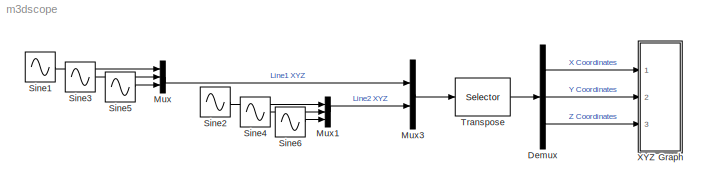
MODEL m3dscope
KIND model
CONFIG AbsTol = auto
CONFIG FixedStep = 1
CONFIG MaxStep = auto
CONFIG RelTol = 1e-3
CONFIG Solver = ode45
CONFIG SolverMode = Auto
CONFIG StartTime = 0.0
CONFIG StopTime = 10
BLOCK [Demux] Demux
  Outputs = [2 2 2]
  Ports = [1, 3, 0, 0, 0]
BLOCK [Mux] Mux
  DisplayOption = bar
  Inputs = 3
  Ports = [3, 1, 0, 0, 0]
BLOCK [Mux] Mux1
  DisplayOption = bar
  Inputs = 3
  Ports = [3, 1, 0, 0, 0]
BLOCK [Mux] Mux3
  DisplayOption = bar
  Inputs = 2
  Ports = [2, 1, 0, 0, 0]
BLOCK [Sin] Sine1
  Amplitude = 1
  Frequency = 1
  Phase = 0
  SampleTime = 0
BLOCK [Sin] Sine2
  Amplitude = 2
  Frequency = 2
  Phase = 0
  SampleTime = 0
BLOCK [Sin] Sine3
  Amplitude = 1
  Frequency = 1
  Phase = pi/2
  SampleTime = 0
BLOCK [Sin] Sine4
  Amplitude = 2
  Frequency = 2
  Phase = pi/2
  SampleTime = 0
BLOCK [Sin] Sine5
  Amplitude = 1.5
  Frequency = 1.2
  Phase = pi/2
  SampleTime = 0
BLOCK [Sin] Sine6
  Amplitude = 2.5
  Frequency = 2.2
  Phase = pi/2
  SampleTime = 0
BLOCK [Selector] Transpose
  Elements = reshape(reshape(1:3*2,3,2)',3*2,1)
  InputPortWidth = 3*2
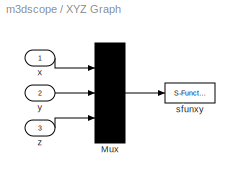
BLOCK [SubSystem] XYZ Graph
  CopyFcn = sfunxyz([],[],[],'CopyBlock')
  DeleteFcn = sfunxyz([],[],[],'DeleteBlock')
  LoadFcn = sfunxyz([],[],[],'LoadBlock')
  MaskCallbackString = ||||||
  MaskDescription = Multidimensional XYZ scope using MATLAB graph window.  \n   X,Y,Z coordinates are respectively the first,second, and third input.\n   Enter the number of lines, the XYZ ranges, the camera position, \n   and the sampling time, as mask parameters.
  MaskDisplay = plot([.05 .95 .95 .05 .05],[.45 .45 .95 .95 .45], 0.5+cos(0:0.1:2*pi)*0.3,0.7+sin(0:0.1:2*pi)*0.2)
  MaskEnableString = on,on,on,on,on,on,on
  MaskHelp = This block can be used to explore limit cycles. \n   Look at the m-file sfunxyz.m to see how it works.
  MaskIconFrame = on
  MaskIconOpaque = on
  MaskIconRotate = none
  MaskIconUnits = normalized
  MaskPromptString = Number of lines|[xmin xmax]|[ymin ymax]|[zmin zmax]|Camera position (use [0 0 1] for 2D XY view)|Grid|Sample time:
  MaskSelfModifiable = on
  MaskStyleString = edit,edit,edit,edit,edit,checkbox,edit
  MaskTunableValueString = on,on,on,on,on,on,on
  MaskType = XYZ multiscope
  MaskValueString = 2|[-3 3]|[-3 3]|[-3 3]|[3 2 1]|on|0.1
  MaskVariables = np=@1;xlim=@2;ylim=@3;zlim=@4;cp=@5;gd=@6;st=@7;
  MaskVisibilityString = on,on,on,on,on,on,on
  NameChangeFcn = sfunxyz([],[],[],'NameChange')
  Ports = [3, 0, 0, 0, 0]
  ShowPortLabels = on
  StartFcn = sfunxyz([],[],[],'Start')
  StopFcn = sfunxyz([],[],[],'Stop')
BLOCK [Mux] XYZ Graph/Mux
  DisplayOption = none
  Inputs = [np np np]
  Ports = [3, 1, 0, 0, 0]
BLOCK [S-Function] XYZ Graph/sfunxy
  FunctionName = sfunxyz
  Parameters = [xlim ylim zlim],st,np,cp,gd
  PortCounts = []
  Ports = [1, 0, 0, 0, 0]
  SFunctionModules = ''
BLOCK [Inport] XYZ Graph/x
  DataType = auto
  Interpolate = on
  Port = 1
  PortWidth = -1
  SampleTime = -1
  SignalType = auto
BLOCK [Inport] XYZ Graph/y
  DataType = auto
  Interpolate = on
  Port = 2
  PortWidth = -1
  SampleTime = -1
  SignalType = auto
BLOCK [Inport] XYZ Graph/z
  DataType = auto
  Interpolate = on
  Port = 3
  PortWidth = -1
  SampleTime = -1
  SignalType = auto
LINE Demux:1 -> XYZ Graph:1
LINE Demux:2 -> XYZ Graph:2
LINE Demux:3 -> XYZ Graph:3
LINE Mux1:1 -> Mux3:2
LINE Mux3:1 -> Transpose:1
LINE Mux:1 -> Mux3:1
LINE Sine1:1 -> Mux:1
LINE Sine2:1 -> Mux1:1
LINE Sine3:1 -> Mux:2
LINE Sine4:1 -> Mux1:2
LINE Sine5:1 -> Mux:3
LINE Sine6:1 -> Mux1:3
LINE Transpose:1 -> Demux:1
LINE XYZ Graph/Mux:1 -> XYZ Graph/sfunxy:1
LINE XYZ Graph/x:1 -> XYZ Graph/Mux:1
LINE XYZ Graph/y:1 -> XYZ Graph/Mux:2
LINE XYZ Graph/z:1 -> XYZ Graph/Mux:3
